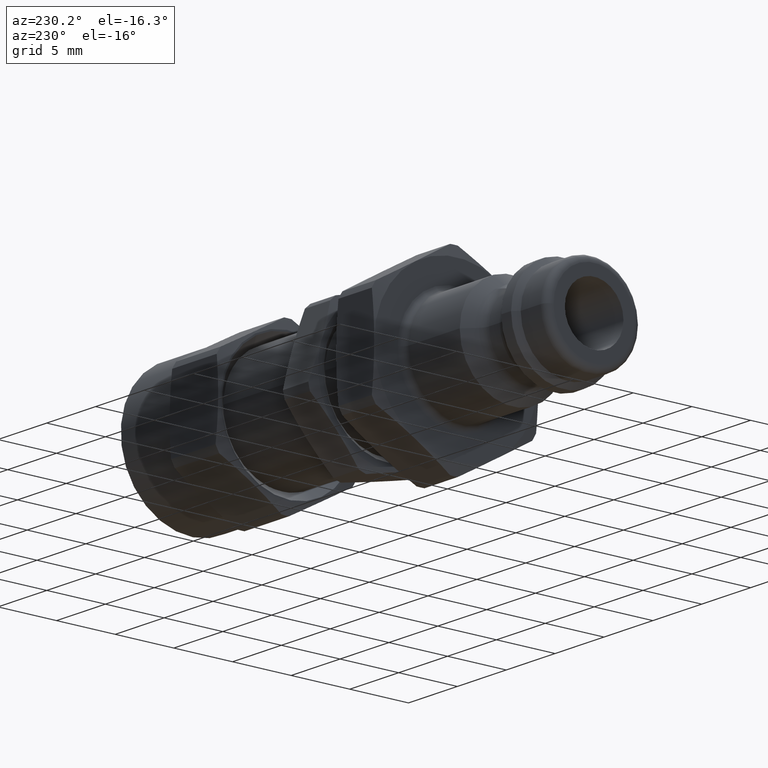
[diagram: clean part render]
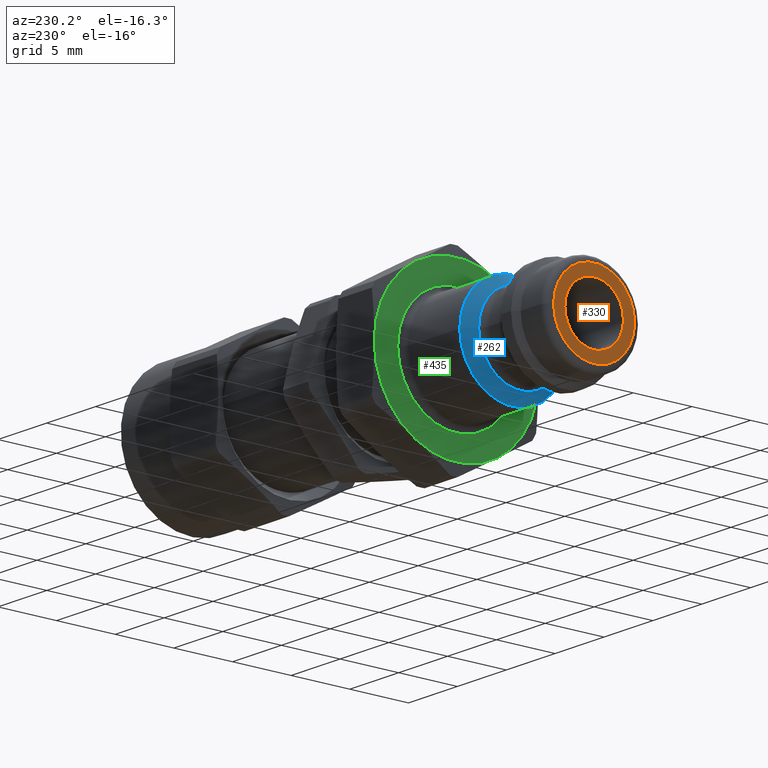
[diagram: same view with three faces highlighted in distinct colors, each labeled with its STEP entity id]
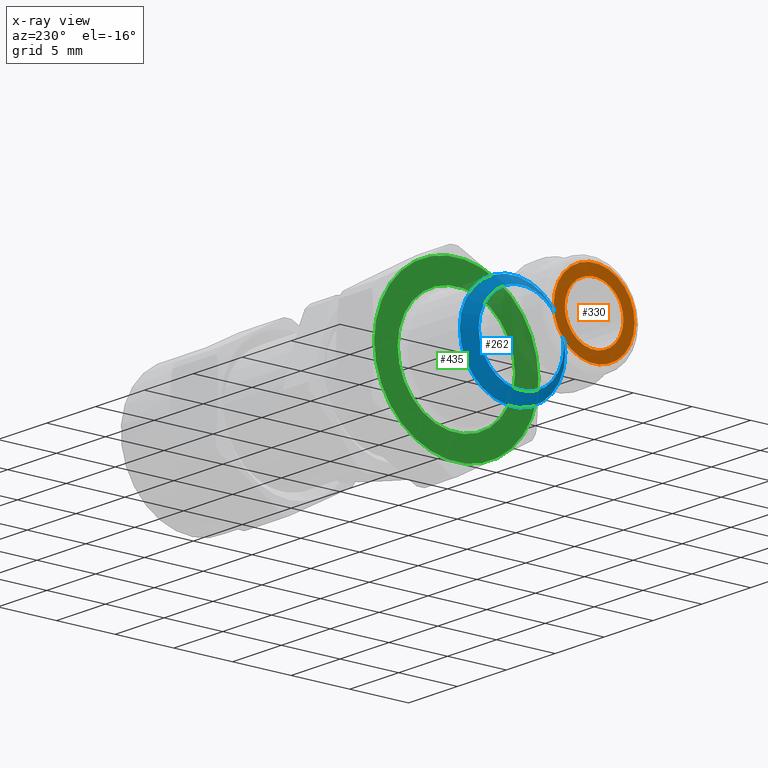
[diagram: x-ray of the same camera — body ghosted, the three highlighted faces saturated]
A machine part, auxiliary view with three faces highlighted in distinct colors.
The next image is the same camera in x-ray (body ghosted, the three faces saturated) — at least one of them is partly hidden behind the body in this view.
Their STEP definitions:

[orange] entity #330 — the highlighted planar face has unit normal (-1, 0, 0).
#268=CARTESIAN_POINT('',(0.0,3.45,0.0));
#269=VERTEX_POINT('',#268);
#270=CARTESIAN_POINT('',(0.0,0.0,0.0));
#271=DIRECTION('',(1.0,0.0,0.0));
#272=DIRECTION('',(0.0,-1.0,0.0));
#273=AXIS2_PLACEMENT_3D('',#270,#271,#272);
#274=CIRCLE('',#273,3.45);
#275=EDGE_CURVE('',#269,#269,#274,.T.);
#311=CARTESIAN_POINT('',(0.0,3.275,0.0));
#312=DIRECTION('',(-1.0,0.0,0.0));
#313=DIRECTION('',(0.0,0.0,1.0));
#314=AXIS2_PLACEMENT_3D('',#311,#312,#313);
#315=PLANE('',#314);
#316=ORIENTED_EDGE('',*,*,#275,.F.);
#317=EDGE_LOOP('',(#316));
#318=FACE_OUTER_BOUND('',#317,.T.);
#319=CARTESIAN_POINT('',(0.0,2.499999999999999,0.0));
#320=VERTEX_POINT('',#319);
#321=CARTESIAN_POINT('',(0.0,0.0,0.0));
#322=DIRECTION('',(1.0,0.0,0.0));
#323=DIRECTION('',(0.0,1.0,0.0));
#324=AXIS2_PLACEMENT_3D('',#321,#322,#323);
#325=CIRCLE('',#324,2.499999999999999);
#326=EDGE_CURVE('',#320,#320,#325,.T.);
#327=ORIENTED_EDGE('',*,*,#326,.T.);
#328=EDGE_LOOP('',(#327));
#329=FACE_BOUND('',#328,.T.);
#330=ADVANCED_FACE('',(#318,#329),#315,.T.);

[blue] entity #262 — the highlighted conical surface has half-angle 45 deg.
#231=CARTESIAN_POINT('',(7.467893218813453,3.617893218813453,-8.861283E-016));
#232=VERTEX_POINT('',#231);
#233=CARTESIAN_POINT('',(7.467893218813453,0.0,-4.430641E-016));
#234=DIRECTION('',(-1.0,0.0,0.0));
#235=DIRECTION('',(0.0,-1.0,0.0));
#236=AXIS2_PLACEMENT_3D('',#233,#234,#235);
#237=CIRCLE('',#236,3.617893218813453);
#238=EDGE_CURVE('',#232,#232,#237,.T.);
#243=CARTESIAN_POINT('',(7.762499999999999,0.0,0.0));
#244=DIRECTION('',(1.0,0.0,0.0));
#245=DIRECTION('',(0.0,1.0,0.0));
#246=AXIS2_PLACEMENT_3D('',#243,#244,#245);
#247=CONICAL_SURFACE('',#246,3.9125,45.000000000000057);
#248=CARTESIAN_POINT('',(8.349999999999998,4.5,0.0));
#249=VERTEX_POINT('',#248);
#250=CARTESIAN_POINT('',(8.349999999999998,0.0,0.0));
#251=DIRECTION('',(1.0,0.0,0.0));
#252=DIRECTION('',(0.0,1.0,0.0));
#253=AXIS2_PLACEMENT_3D('',#250,#251,#252);
#254=CIRCLE('',#253,4.5);
#255=EDGE_CURVE('',#249,#249,#254,.T.);
#256=ORIENTED_EDGE('',*,*,#255,.F.);
#257=EDGE_LOOP('',(#256));
#258=FACE_OUTER_BOUND('',#257,.T.);
#259=ORIENTED_EDGE('',*,*,#238,.F.);
#260=EDGE_LOOP('',(#259));
#261=FACE_BOUND('',#260,.T.);
#262=ADVANCED_FACE('',(#258,#261),#247,.T.);

[green] entity #435 — the highlighted planar face has unit normal (-1, 0, 0).
#347=CARTESIAN_POINT('',(14.100000000000001,5.0,-1.224647E-015));
#348=VERTEX_POINT('',#347);
#349=CARTESIAN_POINT('',(14.100000000000001,0.0,0.0));
#350=DIRECTION('',(-1.0,0.0,0.0));
#351=DIRECTION('',(0.0,-1.0,0.0));
#352=AXIS2_PLACEMENT_3D('',#349,#350,#351);
#353=CIRCLE('',#352,5.0);
#354=EDGE_CURVE('',#348,#348,#353,.T.);
#371=CARTESIAN_POINT('',(14.100000000000001,5.750000000000001,0.0));
#372=DIRECTION('',(-1.0,0.0,0.0));
#373=DIRECTION('',(0.0,0.0,1.0));
#374=AXIS2_PLACEMENT_3D('',#371,#372,#373);
#375=PLANE('',#374);
#376=CARTESIAN_POINT('',(14.100000000000001,7.000000000000001,0.0));
#377=VERTEX_POINT('',#376);
#378=CARTESIAN_POINT('',(14.100000000000001,3.500000000000001,6.062177826491071));
#379=VERTEX_POINT('',#378);
#380=CARTESIAN_POINT('',(14.100000000000001,0.0,0.0));
#381=DIRECTION('',(1.0,0.0,0.0));
#382=DIRECTION('',(0.0,1.0,0.0));
#383=AXIS2_PLACEMENT_3D('',#380,#381,#382);
#384=CIRCLE('',#383,7.000000000000001);
#385=EDGE_CURVE('',#377,#379,#384,.T.);
#386=ORIENTED_EDGE('',*,*,#385,.F.);
#387=CARTESIAN_POINT('',(14.100000000000001,3.499999999999996,-6.062177826491075));
#388=VERTEX_POINT('',#387);
#389=CARTESIAN_POINT('',(14.100000000000001,0.0,0.0));
#390=DIRECTION('',(1.0,0.0,0.0));
#391=DIRECTION('',(0.0,1.0,0.0));
#392=AXIS2_PLACEMENT_3D('',#389,#390,#391);
#393=CIRCLE('',#392,7.000000000000001);
#394=EDGE_CURVE('',#388,#377,#393,.T.);
#395=ORIENTED_EDGE('',*,*,#394,.F.);
#396=CARTESIAN_POINT('',(14.100000000000001,-3.500000000000004,-6.06217782649107));
#397=VERTEX_POINT('',#396);
#398=CARTESIAN_POINT('',(14.100000000000001,0.0,0.0));
#399=DIRECTION('',(1.0,0.0,0.0));
#400=DIRECTION('',(0.0,1.0,0.0));
#401=AXIS2_PLACEMENT_3D('',#398,#399,#400);
#402=CIRCLE('',#401,7.000000000000001);
#403=EDGE_CURVE('',#397,#388,#402,.T.);
#404=ORIENTED_EDGE('',*,*,#403,.F.);
#405=CARTESIAN_POINT('',(14.100000000000001,-7.000000000000002,1.165734E-015));
#406=VERTEX_POINT('',#405);
#407=CARTESIAN_POINT('',(14.100000000000001,0.0,0.0));
#408=DIRECTION('',(1.0,0.0,0.0));
#409=DIRECTION('',(0.0,1.0,0.0));
#410=AXIS2_PLACEMENT_3D('',#407,#408,#409);
#411=CIRCLE('',#410,7.000000000000001);
#412=EDGE_CURVE('',#406,#397,#411,.T.);
#413=ORIENTED_EDGE('',*,*,#412,.F.);
#414=CARTESIAN_POINT('',(14.100000000000001,-3.5,6.062177826491073));
#415=VERTEX_POINT('',#414);
#416=CARTESIAN_POINT('',(14.100000000000001,0.0,0.0));
#417=DIRECTION('',(1.0,0.0,0.0));
#418=DIRECTION('',(0.0,1.0,0.0));
#419=AXIS2_PLACEMENT_3D('',#416,#417,#418);
#420=CIRCLE('',#419,7.000000000000001);
#421=EDGE_CURVE('',#415,#406,#420,.T.);
#422=ORIENTED_EDGE('',*,*,#421,.F.);
#423=CARTESIAN_POINT('',(14.100000000000001,0.0,0.0));
#424=DIRECTION('',(1.0,0.0,0.0));
#425=DIRECTION('',(0.0,1.0,0.0));
#426=AXIS2_PLACEMENT_3D('',#423,#424,#425);
#427=CIRCLE('',#426,7.000000000000001);
#428=EDGE_CURVE('',#379,#415,#427,.T.);
#429=ORIENTED_EDGE('',*,*,#428,.F.);
#430=EDGE_LOOP('',(#386,#395,#404,#413,#422,#429));
#431=FACE_OUTER_BOUND('',#430,.T.);
#432=ORIENTED_EDGE('',*,*,#354,.F.);
#433=EDGE_LOOP('',(#432));
#434=FACE_BOUND('',#433,.T.);
#435=ADVANCED_FACE('',(#431,#434),#375,.T.);